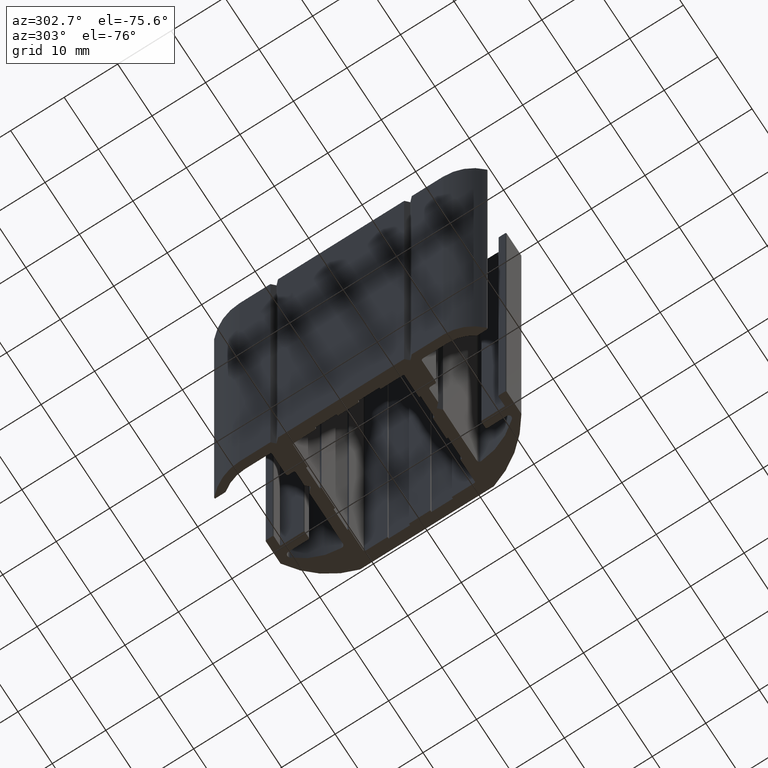
[diagram: clean part render]
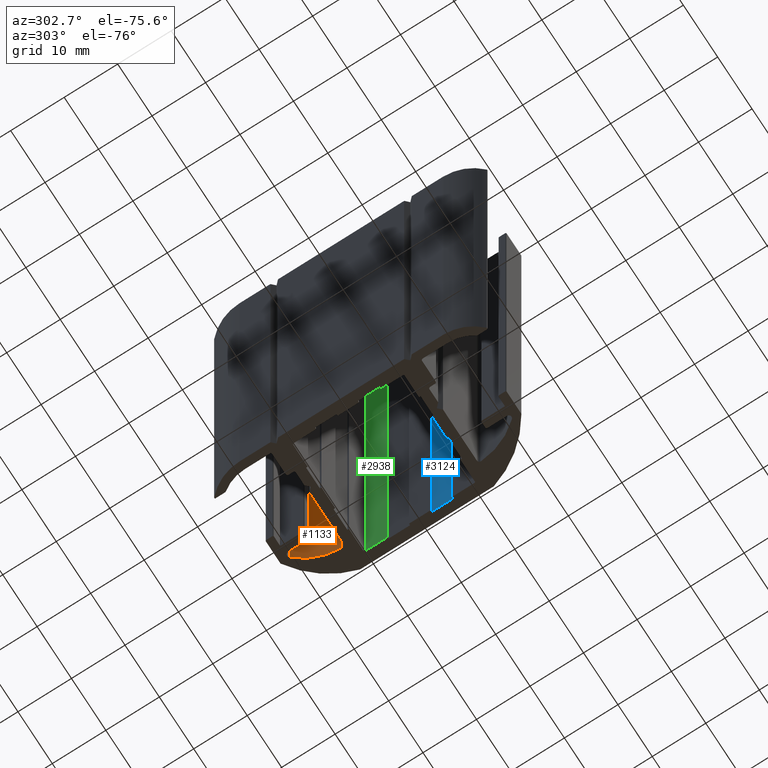
[diagram: same view with three faces highlighted in distinct colors, each labeled with its STEP entity id]
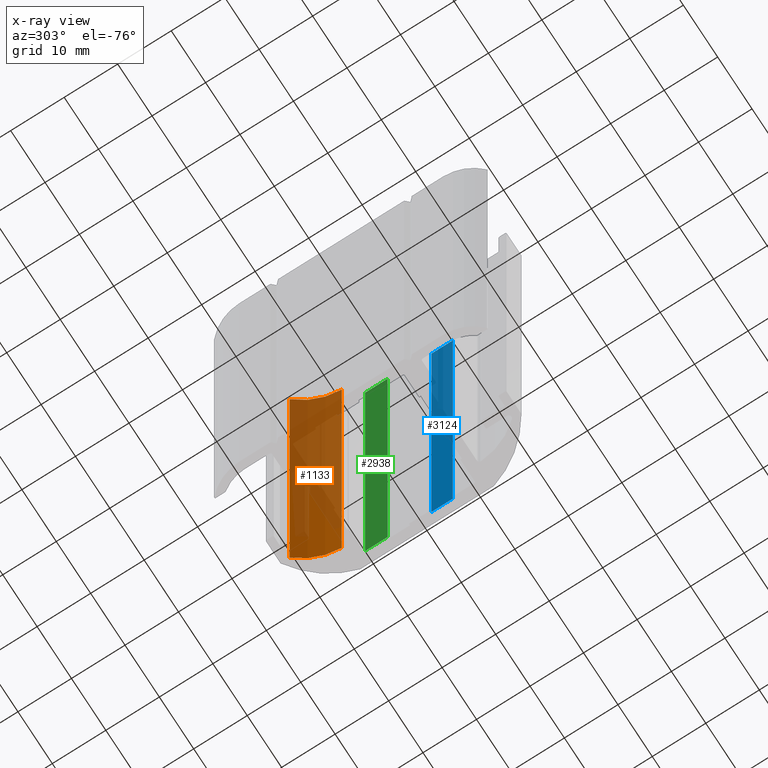
[diagram: x-ray of the same camera — body ghosted, the three highlighted faces saturated]
A machine part, auxiliary view with three faces highlighted in distinct colors.
The next image is the same camera in x-ray (body ghosted, the three faces saturated) — at least one of them is partly hidden behind the body in this view.
Their STEP definitions:

[orange] entity #1133 — the highlighted cylindrical surface (partial cylindrical patch) has radius 12.5 mm, axis along (0, 0, -1).
#1073=CARTESIAN_POINT('',(-7.624999999131887,20.767972844858662,0.0));
#1074=VERTEX_POINT('',#1073);
#1082=CARTESIAN_POINT('',(-7.624999999131887,20.767972844858662,100.0));
#1083=VERTEX_POINT('',#1082);
#1084=CARTESIAN_POINT('',(-7.624999999131887,20.767972844858662,0.0));
#1085=DIRECTION('',(0.0,0.0,1.0));
#1086=VECTOR('',#1085,100.0);
#1087=LINE('',#1084,#1086);
#1088=EDGE_CURVE('',#1074,#1083,#1087,.T.);
#1101=CARTESIAN_POINT('',(-16.999999998189537,12.499999998603130,0.0));
#1102=DIRECTION('',(0.0,0.0,-1.0));
#1103=DIRECTION('',(0.749999999999613,0.661437827766587,0.0));
#1104=AXIS2_PLACEMENT_3D('',#1101,#1102,#1103);
#1105=CYLINDRICAL_SURFACE('',#1104,12.499999998749983);
#1106=CARTESIAN_POINT('',(-4.510855407478289,13.020833331885029,0.0));
#1107=VERTEX_POINT('',#1106);
#1108=CARTESIAN_POINT('',(-16.999999998189537,12.499999998603132,0.0));
#1109=DIRECTION('',(0.0,0.0,-1.0));
#1110=DIRECTION('',(0.999131567356814,0.041666666666719,0.0));
#1111=AXIS2_PLACEMENT_3D('',#1108,#1109,#1110);
#1112=CIRCLE('',#1111,12.499999998749983);
#1113=EDGE_CURVE('',#1074,#1107,#1112,.T.);
#1114=ORIENTED_EDGE('',*,*,#1113,.T.);
#1115=CARTESIAN_POINT('',(-4.510855407478289,13.020833331885029,100.0));
#1116=VERTEX_POINT('',#1115);
#1117=CARTESIAN_POINT('',(-4.510855407478289,13.020833331885029,0.0));
#1118=DIRECTION('',(0.0,0.0,1.0));
#1119=VECTOR('',#1118,100.0);
#1120=LINE('',#1117,#1119);
#1121=EDGE_CURVE('',#1107,#1116,#1120,.T.);
#1122=ORIENTED_EDGE('',*,*,#1121,.T.);
#1123=CARTESIAN_POINT('',(-16.999999998189537,12.499999998603132,100.0));
#1124=DIRECTION('',(0.0,0.0,-1.0));
#1125=DIRECTION('',(0.999131567356814,0.041666666666719,0.0));
#1126=AXIS2_PLACEMENT_3D('',#1123,#1124,#1125);
#1127=CIRCLE('',#1126,12.499999998749983);
#1128=EDGE_CURVE('',#1083,#1116,#1127,.T.);
#1129=ORIENTED_EDGE('',*,*,#1128,.F.);
#1130=ORIENTED_EDGE('',*,*,#1088,.F.);
#1131=EDGE_LOOP('',(#1114,#1122,#1129,#1130));
#1132=FACE_OUTER_BOUND('',#1131,.T.);
#1133=ADVANCED_FACE('',(#1132),#1105,.F.);

[blue] entity #3124 — the highlighted planar face has unit normal (-1, 0, 0).
#3068=CARTESIAN_POINT('',(-1.799999999685724,-1.999999999958135,0.0));
#3069=VERTEX_POINT('',#3068);
#3076=CARTESIAN_POINT('',(-1.799999999685724,-1.999999999958135,100.0));
#3077=VERTEX_POINT('',#3076);
#3078=CARTESIAN_POINT('',(-1.799999999685724,-1.999999999958135,0.0));
#3079=DIRECTION('',(0.0,0.0,1.0));
#3080=VECTOR('',#3079,100.0);
#3081=LINE('',#3078,#3080);
#3082=EDGE_CURVE('',#3069,#3077,#3081,.T.);
#3094=CARTESIAN_POINT('',(-1.799999999685724,-1.999999999958135,0.0));
#3095=DIRECTION('',(-1.0,0.0,0.0));
#3096=DIRECTION('',(0.0,-1.0,0.0));
#3097=AXIS2_PLACEMENT_3D('',#3094,#3095,#3096);
#3098=PLANE('',#3097);
#3099=CARTESIAN_POINT('',(-1.799999999685724,-5.999999999557929,0.0));
#3100=VERTEX_POINT('',#3099);
#3101=CARTESIAN_POINT('',(-1.799999999685724,-1.999999999958135,0.0));
#3102=DIRECTION('',(0.0,-1.0,0.0));
#3103=VECTOR('',#3102,3.999999999599794);
#3104=LINE('',#3101,#3103);
#3105=EDGE_CURVE('',#3069,#3100,#3104,.T.);
#3106=ORIENTED_EDGE('',*,*,#3105,.T.);
#3107=CARTESIAN_POINT('',(-1.799999999685724,-5.999999999557929,100.0));
#3108=VERTEX_POINT('',#3107);
#3109=CARTESIAN_POINT('',(-1.799999999685724,-5.999999999557929,0.0));
#3110=DIRECTION('',(0.0,0.0,1.0));
#3111=VECTOR('',#3110,100.0);
#3112=LINE('',#3109,#3111);
#3113=EDGE_CURVE('',#3100,#3108,#3112,.T.);
#3114=ORIENTED_EDGE('',*,*,#3113,.T.);
#3115=CARTESIAN_POINT('',(-1.799999999685724,-1.999999999958135,100.0));
#3116=DIRECTION('',(0.0,-1.0,0.0));
#3117=VECTOR('',#3116,3.999999999599794);
#3118=LINE('',#3115,#3117);
#3119=EDGE_CURVE('',#3077,#3108,#3118,.T.);
#3120=ORIENTED_EDGE('',*,*,#3119,.F.);
#3121=ORIENTED_EDGE('',*,*,#3082,.F.);
#3122=EDGE_LOOP('',(#3106,#3114,#3120,#3121));
#3123=FACE_OUTER_BOUND('',#3122,.T.);
#3124=ADVANCED_FACE('',(#3123),#3098,.T.);

[green] entity #2938 — the highlighted planar face has unit normal (-1, 0, 0).
#2880=CARTESIAN_POINT('',(-2.099999999655665,10.199999998822079,0.0));
#2881=VERTEX_POINT('',#2880);
#2889=CARTESIAN_POINT('',(-2.099999999655665,10.199999998822079,100.0));
#2890=VERTEX_POINT('',#2889);
#2891=CARTESIAN_POINT('',(-2.099999999655665,10.199999998822079,0.0));
#2892=DIRECTION('',(0.0,0.0,1.0));
#2893=VECTOR('',#2892,100.0);
#2894=LINE('',#2891,#2893);
#2895=EDGE_CURVE('',#2881,#2890,#2894,.T.);
#2908=CARTESIAN_POINT('',(-2.099999999655665,10.199999998822079,0.0));
#2909=DIRECTION('',(-1.0,0.0,0.0));
#2910=DIRECTION('',(0.0,-1.0,0.0));
#2911=AXIS2_PLACEMENT_3D('',#2908,#2909,#2910);
#2912=PLANE('',#2911);
#2913=CARTESIAN_POINT('',(-2.099999999655665,5.999999999241965,0.0));
#2914=VERTEX_POINT('',#2913);
#2915=CARTESIAN_POINT('',(-2.099999999655665,10.199999998822079,0.0));
#2916=DIRECTION('',(0.0,-1.0,0.0));
#2917=VECTOR('',#2916,4.199999999580115);
#2918=LINE('',#2915,#2917);
#2919=EDGE_CURVE('',#2881,#2914,#2918,.T.);
#2920=ORIENTED_EDGE('',*,*,#2919,.T.);
#2921=CARTESIAN_POINT('',(-2.099999999655665,5.999999999241965,100.0));
#2922=VERTEX_POINT('',#2921);
#2923=CARTESIAN_POINT('',(-2.099999999655665,5.999999999241965,0.0));
#2924=DIRECTION('',(0.0,0.0,1.0));
#2925=VECTOR('',#2924,100.0);
#2926=LINE('',#2923,#2925);
#2927=EDGE_CURVE('',#2914,#2922,#2926,.T.);
#2928=ORIENTED_EDGE('',*,*,#2927,.T.);
#2929=CARTESIAN_POINT('',(-2.099999999655665,10.199999998822079,100.0));
#2930=DIRECTION('',(0.0,-1.0,0.0));
#2931=VECTOR('',#2930,4.199999999580115);
#2932=LINE('',#2929,#2931);
#2933=EDGE_CURVE('',#2890,#2922,#2932,.T.);
#2934=ORIENTED_EDGE('',*,*,#2933,.F.);
#2935=ORIENTED_EDGE('',*,*,#2895,.F.);
#2936=EDGE_LOOP('',(#2920,#2928,#2934,#2935));
#2937=FACE_OUTER_BOUND('',#2936,.T.);
#2938=ADVANCED_FACE('',(#2937),#2912,.T.);